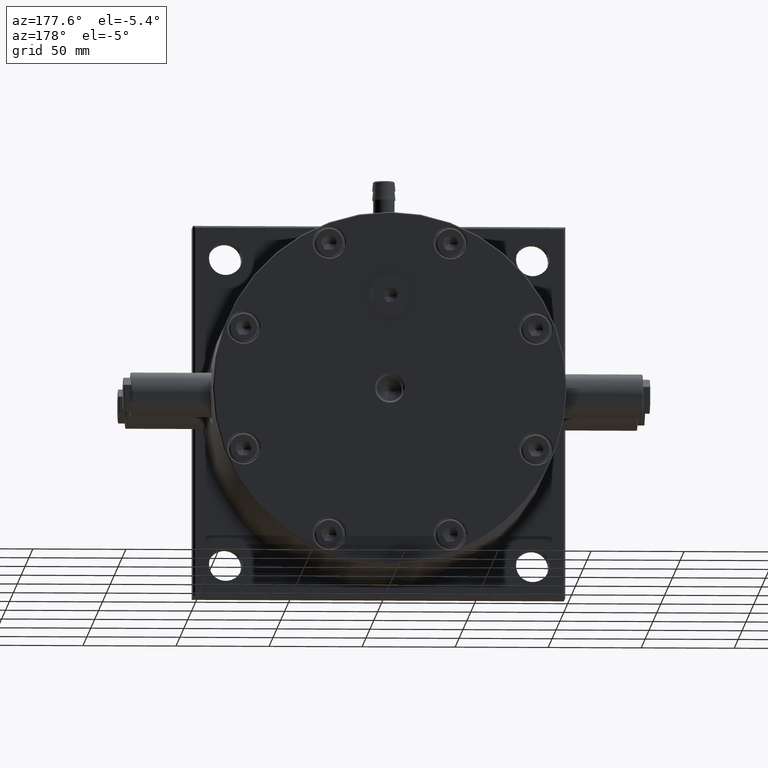
[diagram: clean part render]
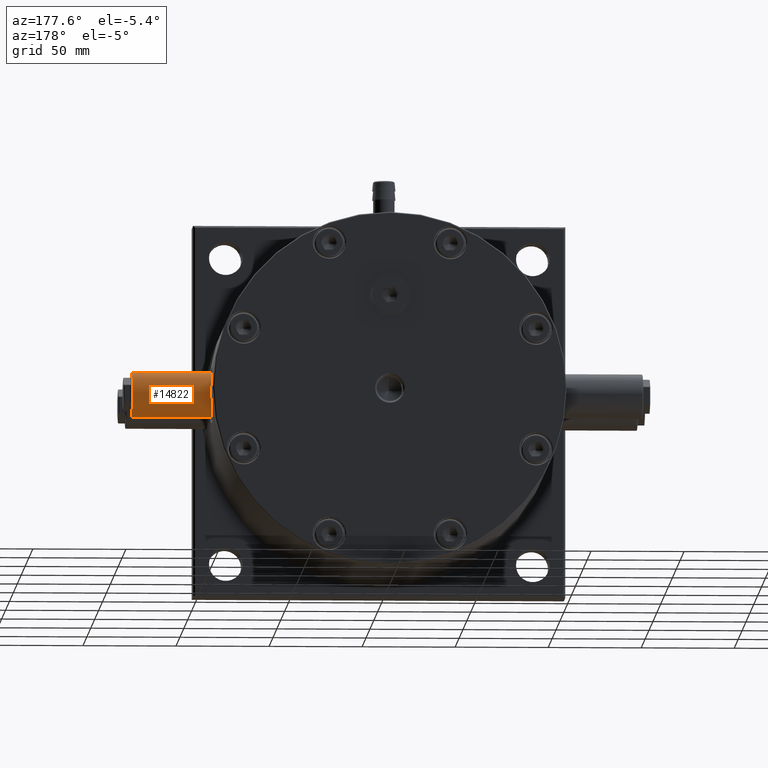
[diagram: same view with one face highlighted and labeled with its STEP entity id]
A machine part, auxiliary view. The second image highlights one B-rep face of the part: STEP entity #14822.
In plain terms, the highlighted cylindrical surface (edge-blend (fillet) strip) has radius 12 mm, axis along (-1, -0, 0).
Its self-contained STEP definition (entity closure, byte-faithful):
#1233 = VECTOR ( 'NONE', #33703, 1000.000000000000000 ) ;
#2124 = VERTEX_POINT ( 'NONE', #2865 ) ;
#2865 = CARTESIAN_POINT ( 'NONE',  ( 127.5000000000000000, 112.0000000000000000, -12.00000000000000000 ) ) ;
#2952 = DIRECTION ( 'NONE',  ( -1.000000000000000000, -9.784048416010939800E-016, 0.0000000000000000000 ) ) ;
#3037 = EDGE_CURVE ( 'NONE', #55171, #29042, #52650, .T. ) ;
#3093 = LINE ( 'NONE', #26202, #15321 ) ;
#3686 = CARTESIAN_POINT ( 'NONE',  ( 137.5000000000000000, 112.0000000000000000, 12.00000000000000000 ) ) ;
#3776 = LINE ( 'NONE', #40398, #56718 ) ;
#3991 = LINE ( 'NONE', #40624, #26996 ) ;
#4328 = CARTESIAN_POINT ( 'NONE',  ( 137.5000000000000000, 112.0000000000000000, -12.00000000000000000 ) ) ;
#5171 = DIRECTION ( 'NONE',  ( -1.000000000000000000, -9.784048416010939800E-016, 0.0000000000000000000 ) ) ;
#5742 = CARTESIAN_POINT ( 'NONE',  ( 103.5000000000000000, 112.0000000000000000, 12.00000000000000000 ) ) ;
#6054 = AXIS2_PLACEMENT_3D ( 'NONE', #8107, #37240, #42386 ) ;
#6337 = DIRECTION ( 'NONE',  ( -1.000000000000000000, -9.784048416010939800E-016, 0.0000000000000000000 ) ) ;
#6459 = CARTESIAN_POINT ( 'NONE',  ( 137.5000000000000000, 112.0000000000000000, 12.00000000000000000 ) ) ;
#6500 = CARTESIAN_POINT ( 'NONE',  ( 103.5000000000000000, 112.0000000000000000, -12.00000000000000000 ) ) ;
#6574 = ORIENTED_EDGE ( 'NONE', *, *, #52150, .F. ) ;
#6797 = EDGE_CURVE ( 'NONE', #12815, #53008, #55810, .T. ) ;
#6912 = EDGE_CURVE ( 'NONE', #44447, #46838, #25947, .T. ) ;
#7077 = ORIENTED_EDGE ( 'NONE', *, *, #35882, .T. ) ;
#7937 = EDGE_CURVE ( 'NONE', #34975, #2124, #61853, .T. ) ;
#8107 = CARTESIAN_POINT ( 'NONE',  ( 137.0000000000000000, 112.0000000000000000, 0.0000000000000000000 ) ) ;
#8237 = LINE ( 'NONE', #62524, #58803 ) ;
#8340 = ORIENTED_EDGE ( 'NONE', *, *, #3037, .F. ) ;
#8637 = DIRECTION ( 'NONE',  ( -1.000000000000000000, -9.784048416010939800E-016, 0.0000000000000000000 ) ) ;
#8961 = LINE ( 'NONE', #63043, #1233 ) ;
#8986 = CARTESIAN_POINT ( 'NONE',  ( 127.5000000000000000, 112.0000000000000000, 12.00000000000000000 ) ) ;
#10337 = ORIENTED_EDGE ( 'NONE', *, *, #10564, .T. ) ;
#10564 = EDGE_CURVE ( 'NONE', #38567, #13621, #48478, .T. ) ;
#11897 = CARTESIAN_POINT ( 'NONE',  ( 117.5000000000000000, 112.0000000000000000, 12.00000000000000000 ) ) ;
#12246 = CARTESIAN_POINT ( 'NONE',  ( 101.5000000000000000, 112.0000000000000000, 12.00000000000000000 ) ) ;
#12503 = DIRECTION ( 'NONE',  ( 0.0000000000000000000, 0.0000000000000000000, -1.000000000000000000 ) ) ;
#12707 = DIRECTION ( 'NONE',  ( -1.000000000000000000, -9.784048416010939800E-016, 0.0000000000000000000 ) ) ;
#12815 = VERTEX_POINT ( 'NONE', #24695 ) ;
#13522 = VECTOR ( 'NONE', #59180, 1000.000000000000000 ) ;
#13621 = VERTEX_POINT ( 'NONE', #19343 ) ;
#13636 = VECTOR ( 'NONE', #50828, 1000.000000000000000 ) ;
#14128 = CARTESIAN_POINT ( 'NONE',  ( 125.5000000000000000, 112.0000000000000000, -12.00000000000000000 ) ) ;
#14318 = CARTESIAN_POINT ( 'NONE',  ( 137.0000000000000000, 111.9999999999999900, 12.00000000000000000 ) ) ;
#14409 = DIRECTION ( 'NONE',  ( -1.000000000000000000, -9.784048416010939800E-016, 0.0000000000000000000 ) ) ;
#14769 = VERTEX_POINT ( 'NONE', #6500 ) ;
#14822 = ADVANCED_FACE ( 'NONE', ( #45362 ), #57645, .T. ) ;
#15321 = VECTOR ( 'NONE', #59800, 1000.000000000000000 ) ;
#15441 = ORIENTED_EDGE ( 'NONE', *, *, #6797, .F. ) ;
#15954 = DIRECTION ( 'NONE',  ( -1.000000000000000000, -9.784048416010939800E-016, 0.0000000000000000000 ) ) ;
#17104 = VECTOR ( 'NONE', #50986, 1000.000000000000000 ) ;
#17432 = DIRECTION ( 'NONE',  ( -1.000000000000000000, -9.784048416010939800E-016, 0.0000000000000000000 ) ) ;
#17577 = LINE ( 'NONE', #61770, #22996 ) ;
#18079 = CARTESIAN_POINT ( 'NONE',  ( 137.5000000000000000, 112.0000000000000000, 0.0000000000000000000 ) ) ;
#18645 = DIRECTION ( 'NONE',  ( 1.000000000000000000, 9.784048416010939800E-016, -0.0000000000000000000 ) ) ;
#18841 = VECTOR ( 'NONE', #5171, 1000.000000000000000 ) ;
#18889 = EDGE_CURVE ( 'NONE', #53768, #14769, #47986, .T. ) ;
#19343 = CARTESIAN_POINT ( 'NONE',  ( 137.0000000000000000, 111.9999999999999900, -12.00000000000000000 ) ) ;
#19697 = VECTOR ( 'NONE', #61787, 1000.000000000000000 ) ;
#19830 = ORIENTED_EDGE ( 'NONE', *, *, #18889, .T. ) ;
#20966 = LINE ( 'NONE', #32121, #50919 ) ;
#21040 = CIRCLE ( 'NONE', #37759, 12.00000000000000000 ) ;
#21262 = EDGE_CURVE ( 'NONE', #53630, #29042, #21040, .T. ) ;
#21722 = LINE ( 'NONE', #61015, #17104 ) ;
#21866 = ORIENTED_EDGE ( 'NONE', *, *, #41132, .F. ) ;
#21912 = LINE ( 'NONE', #33801, #47203 ) ;
#22996 = VECTOR ( 'NONE', #37341, 1000.000000000000000 ) ;
#23616 = LINE ( 'NONE', #6459, #13636 ) ;
#24214 = LINE ( 'NONE', #40110, #18841 ) ;
#24219 = VERTEX_POINT ( 'NONE', #5742 ) ;
#24695 = CARTESIAN_POINT ( 'NONE',  ( 111.5000000000000000, 112.0000000000000000, 12.00000000000000000 ) ) ;
#25023 = CARTESIAN_POINT ( 'NONE',  ( 111.5000000000000000, 112.0000000000000000, -12.00000000000000000 ) ) ;
#25548 = ORIENTED_EDGE ( 'NONE', *, *, #37811, .F. ) ;
#25583 = ORIENTED_EDGE ( 'NONE', *, *, #29055, .T. ) ;
#25629 = ORIENTED_EDGE ( 'NONE', *, *, #38485, .T. ) ;
#25947 = LINE ( 'NONE', #3686, #48963 ) ;
#26202 = CARTESIAN_POINT ( 'NONE',  ( 137.5000000000000000, 112.0000000000000000, 12.00000000000000000 ) ) ;
#26680 = ORIENTED_EDGE ( 'NONE', *, *, #56591, .F. ) ;
#26996 = VECTOR ( 'NONE', #6337, 1000.000000000000000 ) ;
#27614 = ORIENTED_EDGE ( 'NONE', *, *, #21262, .T. ) ;
#28555 = CARTESIAN_POINT ( 'NONE',  ( 94.00000000000000000, 111.9999999999999900, 12.00000000000000000 ) ) ;
#28620 = DIRECTION ( 'NONE',  ( 1.000000000000000000, 9.784048416010939800E-016, -0.0000000000000000000 ) ) ;
#28750 = DIRECTION ( 'NONE',  ( 0.0000000000000000000, 0.0000000000000000000, 1.000000000000000000 ) ) ;
#29042 = VERTEX_POINT ( 'NONE', #28555 ) ;
#29055 = EDGE_CURVE ( 'NONE', #14769, #48789, #24214, .T. ) ;
#31284 = VECTOR ( 'NONE', #17432, 1000.000000000000000 ) ;
#32121 = CARTESIAN_POINT ( 'NONE',  ( 137.5000000000000000, 112.0000000000000000, 12.00000000000000000 ) ) ;
#32969 = EDGE_CURVE ( 'NONE', #55171, #24219, #3093, .T. ) ;
#33292 = CARTESIAN_POINT ( 'NONE',  ( 137.5000000000000000, 112.0000000000000000, 12.00000000000000000 ) ) ;
#33703 = DIRECTION ( 'NONE',  ( -1.000000000000000000, -9.784048416010939800E-016, 0.0000000000000000000 ) ) ;
#33801 = CARTESIAN_POINT ( 'NONE',  ( 137.5000000000000000, 112.0000000000000000, -12.00000000000000000 ) ) ;
#34055 = EDGE_CURVE ( 'NONE', #42396, #44268, #3776, .T. ) ;
#34460 = ORIENTED_EDGE ( 'NONE', *, *, #48150, .T. ) ;
#34954 = VERTEX_POINT ( 'NONE', #8986 ) ;
#34975 = VERTEX_POINT ( 'NONE', #14128 ) ;
#35470 = ORIENTED_EDGE ( 'NONE', *, *, #32969, .T. ) ;
#35629 = CARTESIAN_POINT ( 'NONE',  ( 94.00000000000000000, 111.9999999999999900, -12.00000000000000000 ) ) ;
#35882 = EDGE_CURVE ( 'NONE', #13621, #2124, #8961, .T. ) ;
#37240 = DIRECTION ( 'NONE',  ( -1.000000000000000000, -9.784048416010939800E-016, -0.0000000000000000000 ) ) ;
#37341 = DIRECTION ( 'NONE',  ( -1.000000000000000000, -9.784048416010939800E-016, 0.0000000000000000000 ) ) ;
#37759 = AXIS2_PLACEMENT_3D ( 'NONE', #38644, #48914, #28750 ) ;
#37811 = EDGE_CURVE ( 'NONE', #49414, #12815, #23616, .T. ) ;
#38485 = EDGE_CURVE ( 'NONE', #48789, #53630, #8237, .T. ) ;
#38547 = DIRECTION ( 'NONE',  ( -1.000000000000000000, -9.784048416010939800E-016, 0.0000000000000000000 ) ) ;
#38567 = VERTEX_POINT ( 'NONE', #14318 ) ;
#38644 = CARTESIAN_POINT ( 'NONE',  ( 94.00000000000000000, 112.0000000000000000, 0.0000000000000000000 ) ) ;
#40110 = CARTESIAN_POINT ( 'NONE',  ( 137.5000000000000000, 112.0000000000000000, -12.00000000000000000 ) ) ;
#40398 = CARTESIAN_POINT ( 'NONE',  ( 137.5000000000000000, 112.0000000000000000, -12.00000000000000000 ) ) ;
#40527 = ORIENTED_EDGE ( 'NONE', *, *, #7937, .F. ) ;
#40624 = CARTESIAN_POINT ( 'NONE',  ( 137.5000000000000000, 112.0000000000000000, 12.00000000000000000 ) ) ;
#41132 = EDGE_CURVE ( 'NONE', #53008, #24219, #20966, .T. ) ;
#42354 = EDGE_CURVE ( 'NONE', #34954, #44447, #3991, .T. ) ;
#42386 = DIRECTION ( 'NONE',  ( 0.0000000000000000000, 0.0000000000000000000, 1.000000000000000000 ) ) ;
#42396 = VERTEX_POINT ( 'NONE', #60083 ) ;
#42678 = ORIENTED_EDGE ( 'NONE', *, *, #34055, .T. ) ;
#43285 = CARTESIAN_POINT ( 'NONE',  ( 137.5000000000000000, 112.0000000000000000, -12.00000000000000000 ) ) ;
#44268 = VERTEX_POINT ( 'NONE', #25023 ) ;
#44429 = CARTESIAN_POINT ( 'NONE',  ( 137.5000000000000000, 112.0000000000000000, -12.00000000000000000 ) ) ;
#44447 = VERTEX_POINT ( 'NONE', #52202 ) ;
#45362 = FACE_OUTER_BOUND ( 'NONE', #62048, .T. ) ;
#46202 = LINE ( 'NONE', #4328, #59958 ) ;
#46403 = VECTOR ( 'NONE', #59703, 1000.000000000000000 ) ;
#46838 = VERTEX_POINT ( 'NONE', #59689 ) ;
#47203 = VECTOR ( 'NONE', #28620, 1000.000000000000000 ) ;
#47986 = LINE ( 'NONE', #49697, #46403 ) ;
#48074 = CARTESIAN_POINT ( 'NONE',  ( 109.5000000000000000, 112.0000000000000000, 12.00000000000000000 ) ) ;
#48150 = EDGE_CURVE ( 'NONE', #34975, #52172, #46202, .T. ) ;
#48248 = CARTESIAN_POINT ( 'NONE',  ( 109.5000000000000000, 112.0000000000000000, -12.00000000000000000 ) ) ;
#48478 = CIRCLE ( 'NONE', #6054, 12.00000000000000000 ) ;
#48789 = VERTEX_POINT ( 'NONE', #62710 ) ;
#48914 = DIRECTION ( 'NONE',  ( 1.000000000000000000, 9.784048416010939800E-016, 0.0000000000000000000 ) ) ;
#48963 = VECTOR ( 'NONE', #8637, 1000.000000000000000 ) ;
#49414 = VERTEX_POINT ( 'NONE', #11897 ) ;
#49697 = CARTESIAN_POINT ( 'NONE',  ( 137.5000000000000000, 112.0000000000000000, -12.00000000000000000 ) ) ;
#50828 = DIRECTION ( 'NONE',  ( -1.000000000000000000, -9.784048416010939800E-016, 0.0000000000000000000 ) ) ;
#50919 = VECTOR ( 'NONE', #2952, 1000.000000000000000 ) ;
#50986 = DIRECTION ( 'NONE',  ( -1.000000000000000000, -9.784048416010939800E-016, 0.0000000000000000000 ) ) ;
#51642 = ORIENTED_EDGE ( 'NONE', *, *, #63392, .F. ) ;
#52150 = EDGE_CURVE ( 'NONE', #53768, #44268, #55825, .T. ) ;
#52172 = VERTEX_POINT ( 'NONE', #58244 ) ;
#52202 = CARTESIAN_POINT ( 'NONE',  ( 125.5000000000000000, 112.0000000000000000, 12.00000000000000000 ) ) ;
#52650 = LINE ( 'NONE', #33292, #19697 ) ;
#53008 = VERTEX_POINT ( 'NONE', #48074 ) ;
#53094 = ORIENTED_EDGE ( 'NONE', *, *, #42354, .F. ) ;
#53630 = VERTEX_POINT ( 'NONE', #35629 ) ;
#53768 = VERTEX_POINT ( 'NONE', #48248 ) ;
#53859 = AXIS2_PLACEMENT_3D ( 'NONE', #18079, #12707, #12503 ) ;
#55171 = VERTEX_POINT ( 'NONE', #12246 ) ;
#55810 = LINE ( 'NONE', #56623, #31284 ) ;
#55825 = LINE ( 'NONE', #43285, #63513 ) ;
#55990 = ORIENTED_EDGE ( 'NONE', *, *, #6912, .F. ) ;
#56591 = EDGE_CURVE ( 'NONE', #42396, #52172, #21912, .T. ) ;
#56623 = CARTESIAN_POINT ( 'NONE',  ( 137.5000000000000000, 112.0000000000000000, 12.00000000000000000 ) ) ;
#56718 = VECTOR ( 'NONE', #15954, 1000.000000000000000 ) ;
#56847 = ORIENTED_EDGE ( 'NONE', *, *, #58281, .F. ) ;
#57645 = CYLINDRICAL_SURFACE ( 'NONE', #53859, 12.00000000000000000 ) ;
#58244 = CARTESIAN_POINT ( 'NONE',  ( 119.5000000000000000, 112.0000000000000000, -12.00000000000000000 ) ) ;
#58281 = EDGE_CURVE ( 'NONE', #38567, #34954, #21722, .T. ) ;
#58803 = VECTOR ( 'NONE', #38547, 1000.000000000000000 ) ;
#59180 = DIRECTION ( 'NONE',  ( 1.000000000000000000, 9.784048416010939800E-016, -0.0000000000000000000 ) ) ;
#59689 = CARTESIAN_POINT ( 'NONE',  ( 119.5000000000000000, 112.0000000000000000, 12.00000000000000000 ) ) ;
#59703 = DIRECTION ( 'NONE',  ( -1.000000000000000000, -9.784048416010939800E-016, 0.0000000000000000000 ) ) ;
#59800 = DIRECTION ( 'NONE',  ( 1.000000000000000000, 9.784048416010939800E-016, -0.0000000000000000000 ) ) ;
#59958 = VECTOR ( 'NONE', #14409, 1000.000000000000000 ) ;
#60083 = CARTESIAN_POINT ( 'NONE',  ( 117.5000000000000000, 112.0000000000000000, -12.00000000000000000 ) ) ;
#61015 = CARTESIAN_POINT ( 'NONE',  ( 137.5000000000000000, 112.0000000000000000, 12.00000000000000000 ) ) ;
#61770 = CARTESIAN_POINT ( 'NONE',  ( 137.5000000000000000, 112.0000000000000000, 12.00000000000000000 ) ) ;
#61787 = DIRECTION ( 'NONE',  ( -1.000000000000000000, -9.784048416010939800E-016, 0.0000000000000000000 ) ) ;
#61853 = LINE ( 'NONE', #44429, #13522 ) ;
#62048 = EDGE_LOOP ( 'NONE', ( #56847, #10337, #7077, #40527, #34460, #26680, #42678, #6574, #19830, #25583, #25629, #27614, #8340, #35470, #21866, #15441, #25548, #51642, #55990, #53094 ) ) ;
#62524 = CARTESIAN_POINT ( 'NONE',  ( 137.5000000000000000, 112.0000000000000000, -12.00000000000000000 ) ) ;
#62710 = CARTESIAN_POINT ( 'NONE',  ( 101.5000000000000000, 112.0000000000000000, -12.00000000000000000 ) ) ;
#63043 = CARTESIAN_POINT ( 'NONE',  ( 137.5000000000000000, 112.0000000000000000, -12.00000000000000000 ) ) ;
#63392 = EDGE_CURVE ( 'NONE', #46838, #49414, #17577, .T. ) ;
#63513 = VECTOR ( 'NONE', #18645, 1000.000000000000000 ) ;